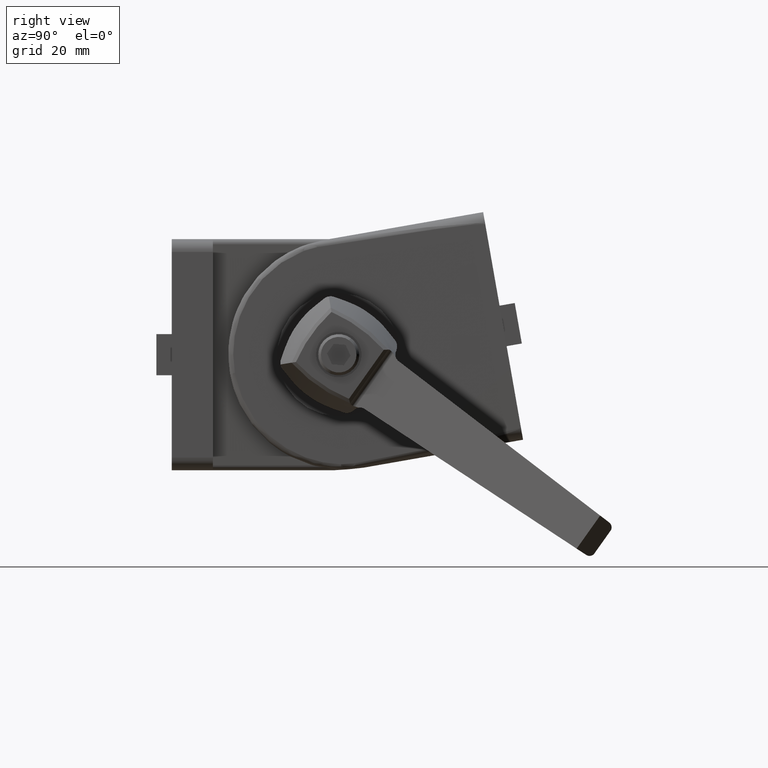
[diagram: clean part render]
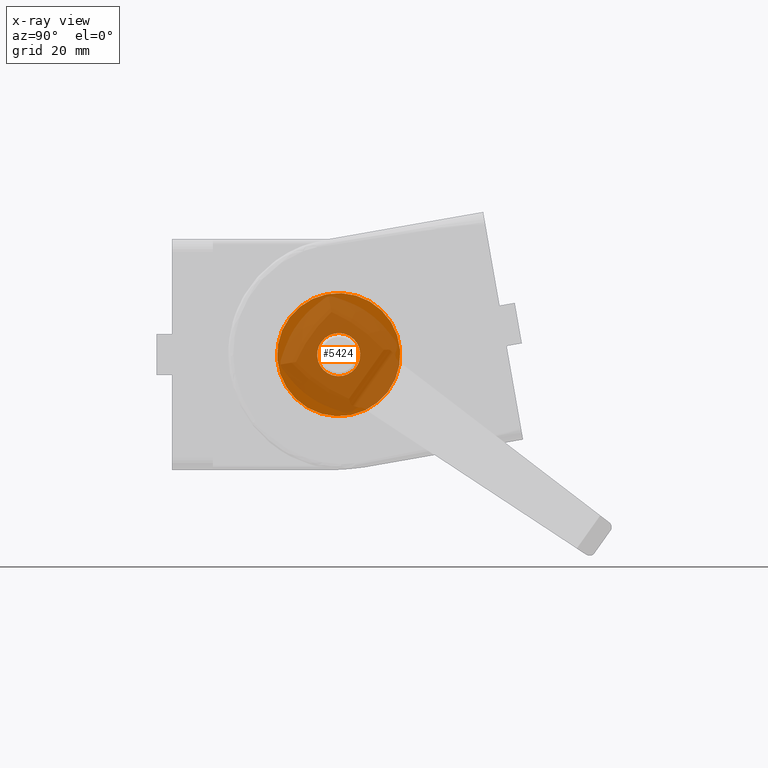
[diagram: x-ray — body ghosted, one internal face saturated and labeled with its STEP entity id]
A machine part, right view, then the same camera in x-ray: the body is ghosted and one INTERNAL B-rep face — a face not visible from any outside direction — is saturated and labeled: STEP entity #5424.
In plain terms, the highlighted planar face has unit normal (-1, -0, 0).
Its self-contained STEP definition (entity closure, byte-faithful):
#1086=PLANE('',#5968);
#1158=FACE_BOUND('',#1920,.T.);
#1585=FACE_OUTER_BOUND('',#1919,.T.);
#1919=EDGE_LOOP('',(#5114));
#1920=EDGE_LOOP('',(#5115));
#2205=CIRCLE('',#5963,4.2);
#2207=CIRCLE('',#5966,12.);
#2770=VERTEX_POINT('',#10285);
#2772=VERTEX_POINT('',#10290);
#3551=EDGE_CURVE('',#2770,#2770,#2205,.T.);
#3553=EDGE_CURVE('',#2772,#2772,#2207,.T.);
#5114=ORIENTED_EDGE('',*,*,#3553,.T.);
#5115=ORIENTED_EDGE('',*,*,#3551,.T.);
#5424=ADVANCED_FACE('',(#1585,#1158),#1086,.T.);
#5963=AXIS2_PLACEMENT_3D('',#10286,#7474,#7475);
#5966=AXIS2_PLACEMENT_3D('',#10291,#7480,#7481);
#5968=AXIS2_PLACEMENT_3D('',#10293,#7484,#7485);
#7474=DIRECTION('center_axis',(1.,0.,0.));
#7475=DIRECTION('ref_axis',(0.,-1.,0.));
#7480=DIRECTION('center_axis',(-1.,0.,0.));
#7481=DIRECTION('ref_axis',(0.,-1.,0.));
#7484=DIRECTION('center_axis',(-1.,0.,0.));
#7485=DIRECTION('ref_axis',(0.,0.,1.));
#10285=CARTESIAN_POINT('',(0.,4.2,5.14351655641888E-16));
#10286=CARTESIAN_POINT('Origin',(0.,0.,0.));
#10290=CARTESIAN_POINT('',(0.,12.,1.46957615897682E-15));
#10291=CARTESIAN_POINT('Origin',(0.,0.,0.));
#10293=CARTESIAN_POINT('Origin',(0.,0.,0.));